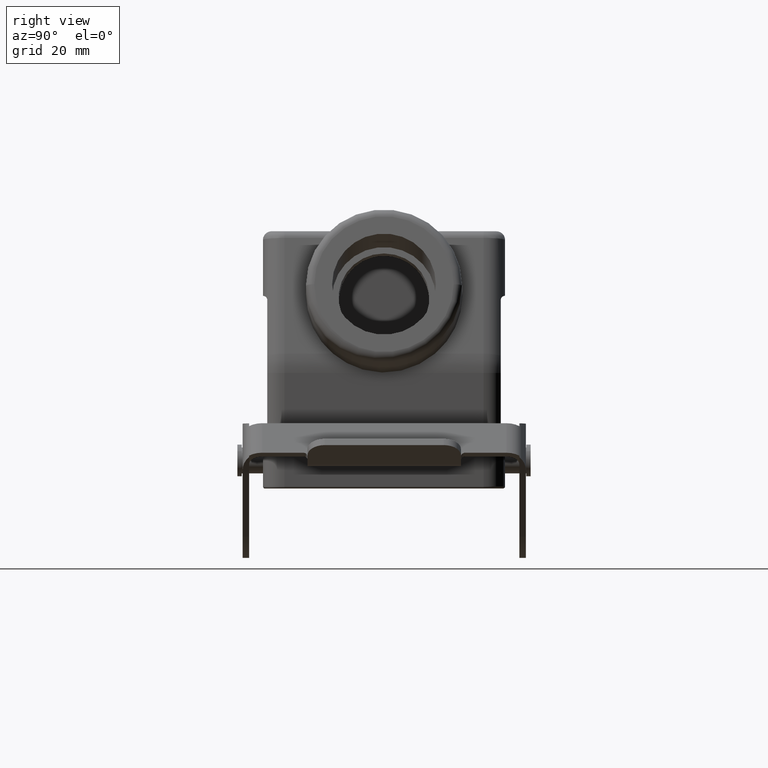
[diagram: clean part render]
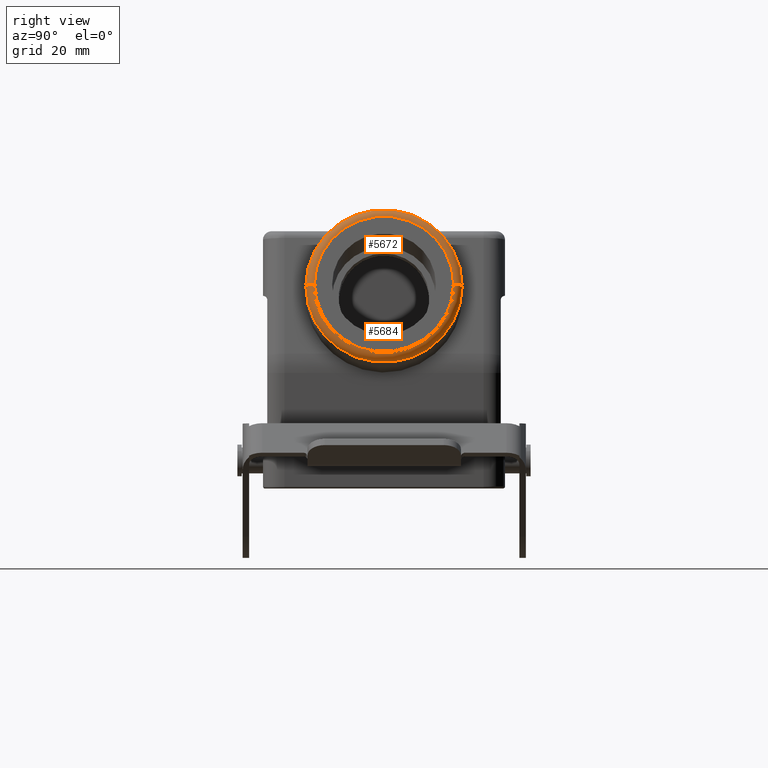
[diagram: same view with one multi-face feature highlighted, each face labeled with its STEP entity id]
A machine part, right view. The highlighted faces form ONE feature: a constant-radius fillet chain: 2 tangent blend faces with common blend radius 2 mm. The faces share edges in the B-rep.
Their STEP definitions:
[1] entity #5672 (Torus):
#2078=CARTESIAN_POINT('',(4.911841135873E1,0.E0,4.727201414835E1));
#2079=DIRECTION('',(9.746597895606E-1,0.E0,2.236924107201E-1));
#2080=DIRECTION('',(6.752362644180E-14,1.E0,-2.943677048149E-13));
#2081=AXIS2_PLACEMENT_3D('',#2078,#2079,#2080);
#2098=CARTESIAN_POINT('',(4.716909177961E1,0.E0,4.682462932691E1));
#2099=DIRECTION('',(-9.746597895606E-1,0.E0,-2.236924107201E-1));
#2100=DIRECTION('',(-2.704773176457E-13,-1.E0,1.178872837286E-12));
#2101=AXIS2_PLACEMENT_3D('',#2098,#2099,#2100);
#2103=CARTESIAN_POINT('',(4.716909177962E1,1.609999999999E1,4.682462932691E1));
#2104=DIRECTION('',(-2.236924107201E-1,1.348920974920E-14,9.746597895606E-1));
#2105=DIRECTION('',(9.746597895606E-1,-1.213251721310E-12,2.236924107201E-1));
#2106=AXIS2_PLACEMENT_3D('',#2103,#2104,#2105);
#2113=CARTESIAN_POINT('',(4.716909177963E1,-1.609999999999E1,4.682462932690E1));
#2114=DIRECTION('',(-2.236924107201E-1,-6.375455718910E-13,9.746597895606E-1));
#2115=DIRECTION('',(1.421085471520E-13,-1.E0,-6.217248937901E-13));
#2116=AXIS2_PLACEMENT_3D('',#2113,#2114,#2115);
#2820=CARTESIAN_POINT('',(4.716909177961E1,1.81E1,4.682462932691E1));
#2821=VERTEX_POINT('',#2820);
#2822=CARTESIAN_POINT('',(4.716909177961E1,-1.81E1,4.682462932691E1));
#2823=VERTEX_POINT('',#2822);
#2837=CARTESIAN_POINT('',(4.911841135873E1,1.61E1,4.727201414835E1));
#2838=CARTESIAN_POINT('',(4.911841135873E1,-1.61E1,4.727201414835E1));
#2839=VERTEX_POINT('',#2837);
#2840=VERTEX_POINT('',#2838);
#5659=CARTESIAN_POINT('',(4.716909177961E1,0.E0,4.682462932691E1));
#5660=DIRECTION('',(9.746597895606E-1,0.E0,2.236924107201E-1));
#5661=DIRECTION('',(2.419919486394E-3,9.999414830011E-1,-1.054393490494E-2));
#5662=AXIS2_PLACEMENT_3D('',#5659,#5660,#5661);
#5663=TOROIDAL_SURFACE('',#5662,1.61E1,2.E0);
#5664=ORIENTED_EDGE('',*,*,#5647,.T.);
#5666=ORIENTED_EDGE('',*,*,#5665,.F.);
#5667=ORIENTED_EDGE('',*,*,#3081,.T.);
#5669=ORIENTED_EDGE('',*,*,#5668,.F.);
#5670=EDGE_LOOP('',(#5664,#5666,#5667,#5669));
#5671=FACE_OUTER_BOUND('',#5670,.F.);
#5672=ADVANCED_FACE('',(#5671),#5663,.T.);
#2082=CIRCLE('',#2081,1.61E1);
#2102=CIRCLE('',#2101,1.81E1);
#2107=CIRCLE('',#2106,2.E0);
#2117=CIRCLE('',#2116,2.E0);
#3081=EDGE_CURVE('',#2823,#2821,#2102,.T.);
#5647=EDGE_CURVE('',#2839,#2840,#2082,.T.);
#5665=EDGE_CURVE('',#2823,#2840,#2117,.T.);
#5668=EDGE_CURVE('',#2839,#2821,#2107,.T.);
[2] entity #5684 (Torus):
#2083=CARTESIAN_POINT('',(4.911841135874E1,0.E0,4.727201414835E1));
#2084=DIRECTION('',(9.746597895606E-1,0.E0,2.236924107201E-1));
#2085=DIRECTION('',(6.752362644183E-14,-1.E0,-2.948090357068E-13));
#2086=AXIS2_PLACEMENT_3D('',#2083,#2084,#2085);
#2103=CARTESIAN_POINT('',(4.716909177962E1,1.609999999999E1,4.682462932691E1));
#2104=DIRECTION('',(-2.236924107201E-1,1.348920974920E-14,9.746597895606E-1));
#2105=DIRECTION('',(9.746597895606E-1,-1.213251721310E-12,2.236924107201E-1));
#2106=AXIS2_PLACEMENT_3D('',#2103,#2104,#2105);
#2108=CARTESIAN_POINT('',(4.716909177962E1,0.E0,4.682462932691E1));
#2109=DIRECTION('',(-9.746597895606E-1,0.E0,-2.236924107201E-1));
#2110=DIRECTION('',(-7.772787938152E-14,1.E0,3.387836358902E-13));
#2111=AXIS2_PLACEMENT_3D('',#2108,#2109,#2110);
#2113=CARTESIAN_POINT('',(4.716909177963E1,-1.609999999999E1,4.682462932690E1));
#2114=DIRECTION('',(-2.236924107201E-1,-6.375455718910E-13,9.746597895606E-1));
#2115=DIRECTION('',(1.421085471520E-13,-1.E0,-6.217248937901E-13));
#2116=AXIS2_PLACEMENT_3D('',#2113,#2114,#2115);
#2820=CARTESIAN_POINT('',(4.716909177961E1,1.81E1,4.682462932691E1));
#2821=VERTEX_POINT('',#2820);
#2822=CARTESIAN_POINT('',(4.716909177961E1,-1.81E1,4.682462932691E1));
#2823=VERTEX_POINT('',#2822);
#2837=CARTESIAN_POINT('',(4.911841135873E1,1.61E1,4.727201414835E1));
#2838=CARTESIAN_POINT('',(4.911841135873E1,-1.61E1,4.727201414835E1));
#2839=VERTEX_POINT('',#2837);
#2840=VERTEX_POINT('',#2838);
#5673=CARTESIAN_POINT('',(4.716909177962E1,0.E0,4.682462932691E1));
#5674=DIRECTION('',(9.746597895606E-1,0.E0,2.236924107201E-1));
#5675=DIRECTION('',(-1.864332896959E-1,-5.526161149074E-1,8.123164765274E-1));
#5676=AXIS2_PLACEMENT_3D('',#5673,#5674,#5675);
#5677=TOROIDAL_SURFACE('',#5676,1.609999999999E1,2.E0);
#5678=ORIENTED_EDGE('',*,*,#5649,.T.);
#5679=ORIENTED_EDGE('',*,*,#5668,.T.);
#5680=ORIENTED_EDGE('',*,*,#3098,.T.);
#5681=ORIENTED_EDGE('',*,*,#5665,.T.);
#5682=EDGE_LOOP('',(#5678,#5679,#5680,#5681));
#5683=FACE_OUTER_BOUND('',#5682,.F.);
#5684=ADVANCED_FACE('',(#5683),#5677,.T.);
#2087=CIRCLE('',#2086,1.609999999999E1);
#2107=CIRCLE('',#2106,2.E0);
#2112=CIRCLE('',#2111,1.809999999999E1);
#2117=CIRCLE('',#2116,2.E0);
#3098=EDGE_CURVE('',#2821,#2823,#2112,.T.);
#5649=EDGE_CURVE('',#2840,#2839,#2087,.T.);
#5665=EDGE_CURVE('',#2823,#2840,#2117,.T.);
#5668=EDGE_CURVE('',#2839,#2821,#2107,.T.);